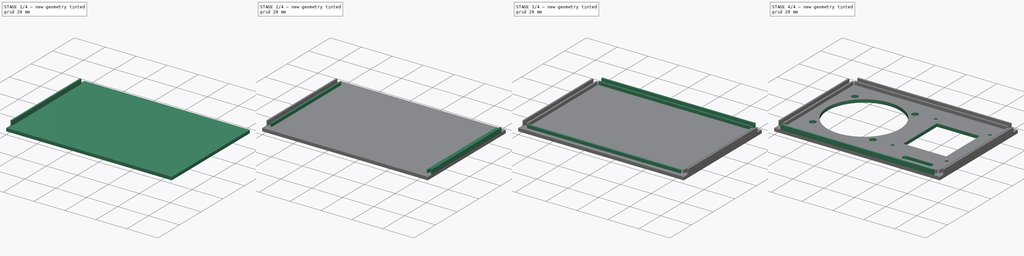
[diagram: build sequence overview — one tinted view per stage of 4, left to right]
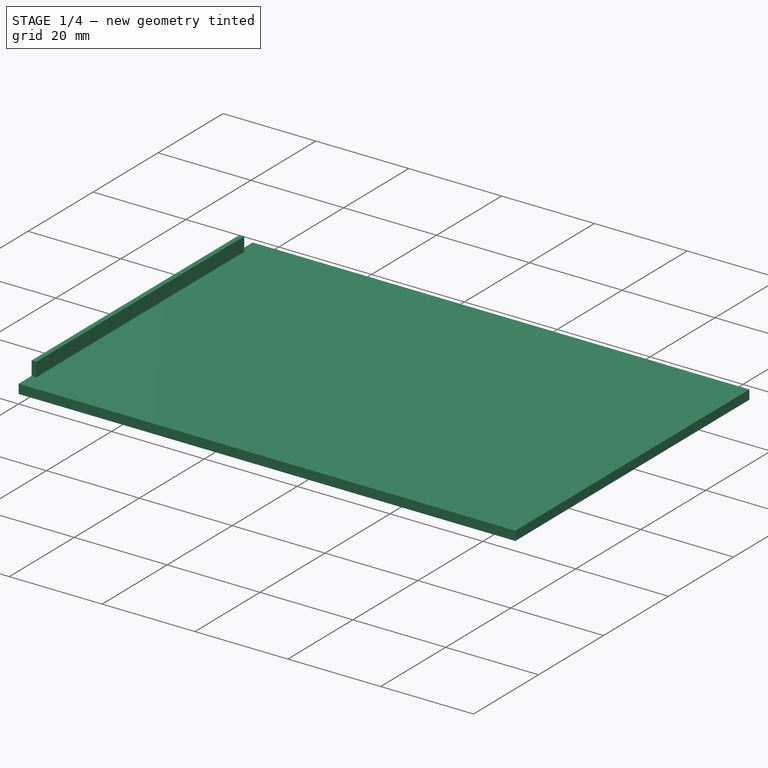
[diagram: stage 1 of 4 — iso view after this stage's code; geometry added in this stage tinted green]
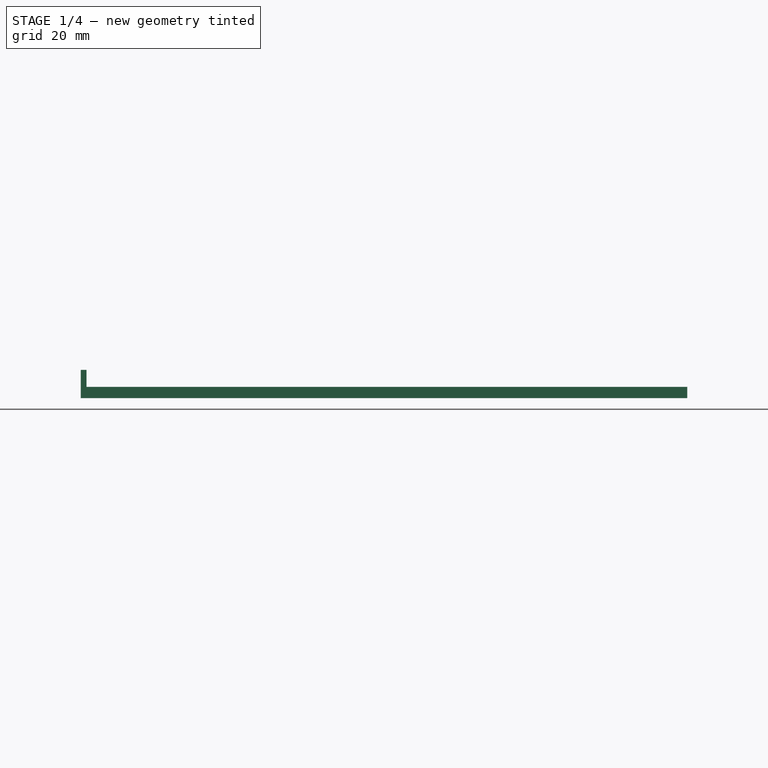
[diagram: stage 1 of 4 — front view after this stage's code; geometry added in this stage tinted green]
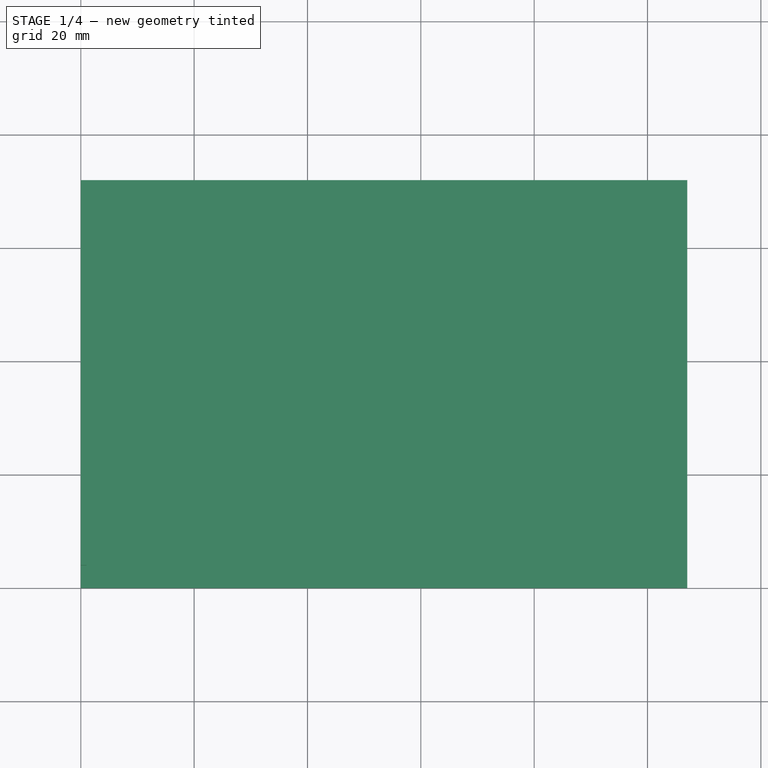
[diagram: stage 1 of 4 — top view after this stage's code; geometry added in this stage tinted green]
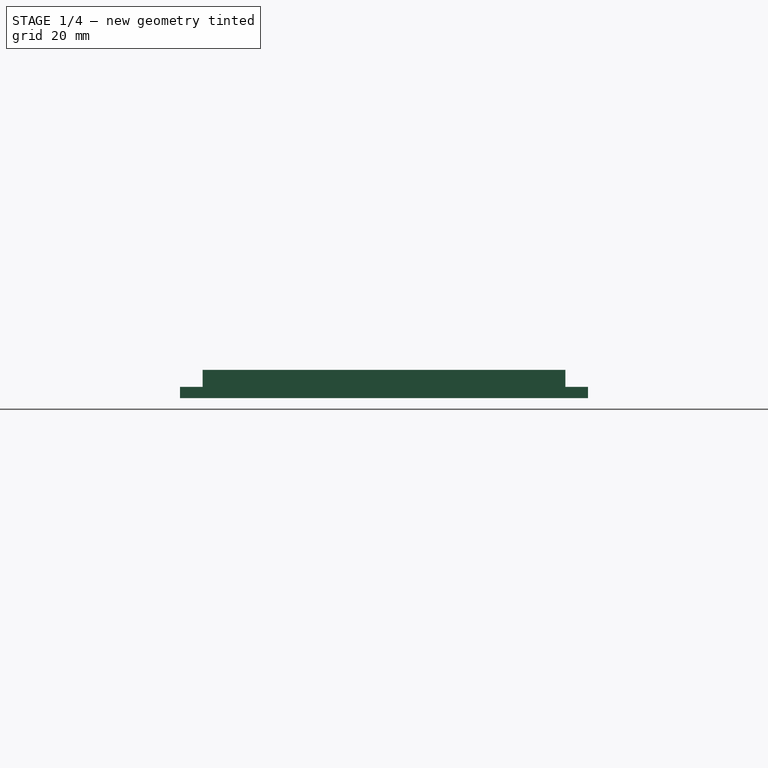
[diagram: stage 1 of 4 — right view after this stage's code; geometry added in this stage tinted green]
FCSTD DOCUMENT  (FreeCAD 0.17R13541 (Git))
Label: SBCBox_back
License: All rights reserved
LicenseURL: http://en.wikipedia.org/wiki/All_rights_reserved
objects: Sketcher::SketchObject×10, PartDesign::Pad×9, PartDesign::Pocket×1, PartDesign::Body×1
note: 31 computed .brp shape members not serialized (recipe doc carries the construction recipe); baked Part::Feature solids carry a one-line shape summary decoded from their .brp

FEATURE [Sketcher::SketchObject] Sketch
  MapMode = 5
  Support = -> [XY_Plane]
  sketch-geometry (4):
    g0: LineSegment StartX=0 StartY=0 StartZ=0 EndX=107 EndY=0 EndZ=0
    g1: LineSegment StartX=107 StartY=0 StartZ=0 EndX=107 EndY=72 EndZ=0
    g2: LineSegment StartX=107 StartY=72 StartZ=0 EndX=0 EndY=72 EndZ=0
    g3: LineSegment StartX=0 StartY=72 StartZ=0 EndX=0 EndY=0 EndZ=0
  constraints (12):
    c: Coincident(g0,g1)
    c: Coincident(g1,g2)
    c: Coincident(g2,g3)
    c: Coincident(g3,g0)
    c: Horizontal(g0)
    c: Horizontal(g2)
    c: Vertical(g1)
    c: Vertical(g3)
    c: DistanceX(g0) = 0
    c: DistanceY(g0) = 0
    c: Distance(g3) = 72
    c: Distance(g0) = 107
FEATURE [PartDesign::Pad] Pad
  Length = 2
  Length2 = 100
  Profile = -> Sketch
  Reversed = true
  Type = 0
FEATURE [Sketcher::SketchObject] Sketch001
  MapMode = 5
  Support = -> [XY_Plane]
  sketch-geometry (4):
    g0: LineSegment StartX=0 StartY=68 StartZ=0 EndX=1 EndY=68 EndZ=0
    g1: LineSegment StartX=1 StartY=68 StartZ=0 EndX=1 EndY=4 EndZ=0
    g2: LineSegment StartX=1 StartY=4 StartZ=0 EndX=0 EndY=4 EndZ=0
    g3: LineSegment StartX=0 StartY=4 StartZ=0 EndX=0 EndY=68 EndZ=0
  constraints (14):
    c: Coincident(g0,g1)
    c: Coincident(g1,g2)
    c: Coincident(g2,g3)
    c: Coincident(g3,g0)
    c: Horizontal(g0)
    c: Horizontal(g2)
    c: Vertical(g1)
    c: Vertical(g3)
    c: Distance(g0) = 1
    c: Equal(g0,g2)
    c: Equal(g1,g3)
    c: Distance(g3) = 64
    c: DistanceX(g2) = 0
    c: DistanceY(g2) = 4
FEATURE [PartDesign::Pad] Pad001
  BaseFeature = -> Pad
  Length = 3
  Length2 = 100
  Profile = -> Sketch001
  Type = 0
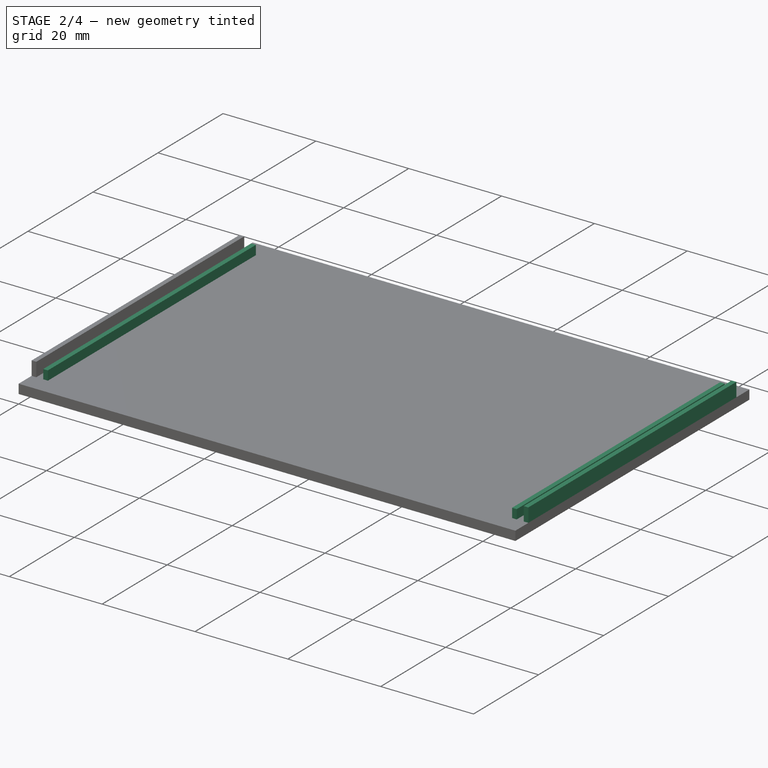
[diagram: stage 2 of 4 — iso view after this stage's code; geometry added in this stage tinted green]
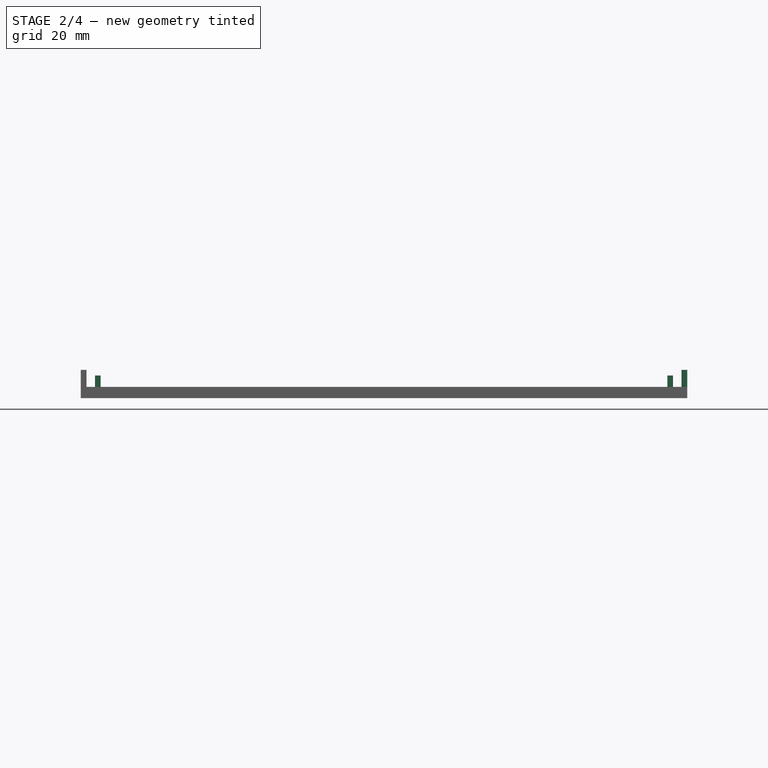
[diagram: stage 2 of 4 — front view after this stage's code; geometry added in this stage tinted green]
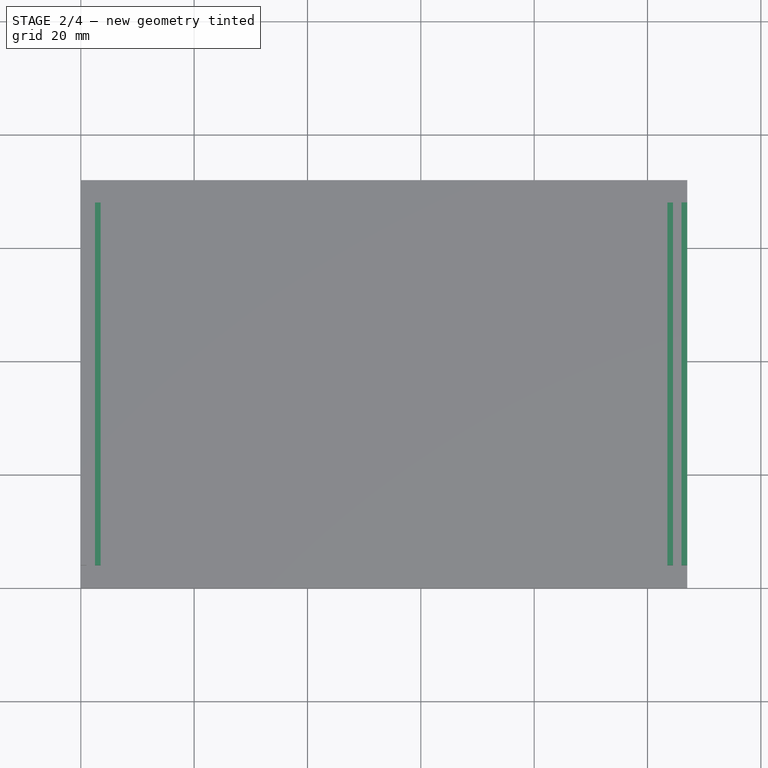
[diagram: stage 2 of 4 — top view after this stage's code; geometry added in this stage tinted green]
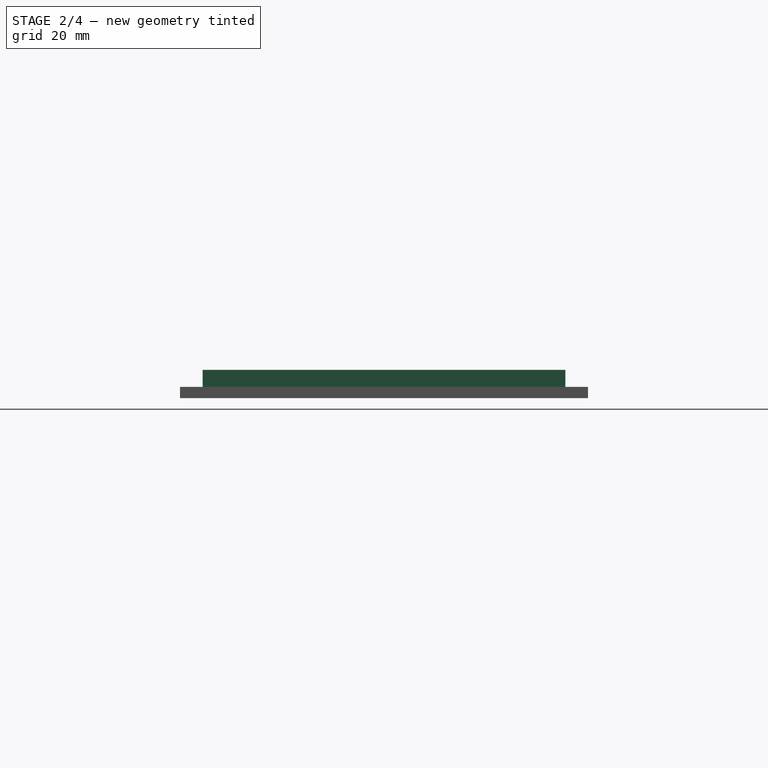
[diagram: stage 2 of 4 — right view after this stage's code; geometry added in this stage tinted green]
FEATURE [Sketcher::SketchObject] Sketch002
  MapMode = 5
  Support = -> [XY_Plane]
  sketch-geometry (4):
    g0: LineSegment StartX=2.5 StartY=68 StartZ=0 EndX=3.5 EndY=68 EndZ=0
    g1: LineSegment StartX=3.5 StartY=68 StartZ=0 EndX=3.5 EndY=4 EndZ=0
    g2: LineSegment StartX=3.5 StartY=4 StartZ=0 EndX=2.5 EndY=4 EndZ=0
    g3: LineSegment StartX=2.5 StartY=4 StartZ=0 EndX=2.5 EndY=68 EndZ=0
  constraints (14):
    c: Coincident(g0,g1)
    c: Coincident(g1,g2)
    c: Coincident(g2,g3)
    c: Coincident(g3,g0)
    c: Horizontal(g0)
    c: Horizontal(g2)
    c: Vertical(g1)
    c: Vertical(g3)
    c: Distance(g0) = 1
    c: Equal(g0,g2)
    c: Equal(g1,g3)
    c: Distance(g3) = 64
    c: DistanceX(g2) = 2.5
    c: DistanceY(g2) = 4
FEATURE [PartDesign::Pad] Pad002
  BaseFeature = -> Pad001
  Length = 2
  Length2 = 100
  Profile = -> Sketch002
  Type = 0
FEATURE [Sketcher::SketchObject] Sketch003
  MapMode = 5
  Support = -> [XY_Plane]
  sketch-geometry (4):
    g0: LineSegment StartX=104.5 StartY=68 StartZ=0 EndX=103.5 EndY=68 EndZ=0
    g1: LineSegment StartX=103.5 StartY=68 StartZ=0 EndX=103.5 EndY=4 EndZ=0
    g2: LineSegment StartX=103.5 StartY=4 StartZ=0 EndX=104.5 EndY=4 EndZ=0
    g3: LineSegment StartX=104.5 StartY=4 StartZ=0 EndX=104.5 EndY=68 EndZ=0
  constraints (14):
    c: Coincident(g0,g1)
    c: Coincident(g1,g2)
    c: Coincident(g2,g3)
    c: Coincident(g3,g0)
    c: Horizontal(g0)
    c: Horizontal(g2)
    c: Vertical(g1)
    c: Vertical(g3)
    c: Distance(g0) = 1
    c: Equal(g0,g2)
    c: Equal(g1,g3)
    c: Distance(g3) = 64
    c: DistanceX(g2) = 104.5
    c: DistanceY(g2) = 4
FEATURE [PartDesign::Pad] Pad003
  BaseFeature = -> Pad002
  Length = 2
  Length2 = 100
  Profile = -> Sketch003
  Type = 0
FEATURE [Sketcher::SketchObject] Sketch004
  MapMode = 5
  Support = -> [XY_Plane]
  sketch-geometry (4):
    g0: LineSegment StartX=107 StartY=68 StartZ=0 EndX=106 EndY=68 EndZ=0
    g1: LineSegment StartX=106 StartY=68 StartZ=0 EndX=106 EndY=4 EndZ=0
    g2: LineSegment StartX=106 StartY=4 StartZ=0 EndX=107 EndY=4 EndZ=0
    g3: LineSegment StartX=107 StartY=4 StartZ=0 EndX=107 EndY=68 EndZ=0
  constraints (14):
    c: Coincident(g0,g1)
    c: Coincident(g1,g2)
    c: Coincident(g2,g3)
    c: Coincident(g3,g0)
    c: Horizontal(g0)
    c: Horizontal(g2)
    c: Vertical(g1)
    c: Vertical(g3)
    c: Distance(g0) = 1
    c: Equal(g0,g2)
    c: Equal(g1,g3)
    c: Distance(g3) = 64
    c: DistanceX(g2) = 107
    c: DistanceY(g2) = 4
FEATURE [PartDesign::Pad] Pad004
  BaseFeature = -> Pad003
  Length = 3
  Length2 = 100
  Profile = -> Sketch004
  Type = 0
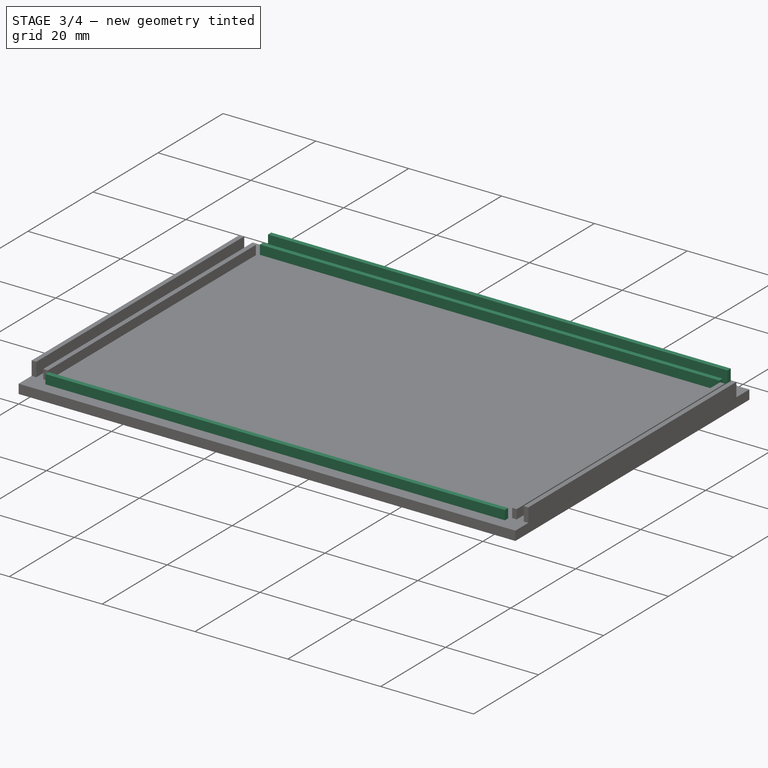
[diagram: stage 3 of 4 — iso view after this stage's code; geometry added in this stage tinted green]
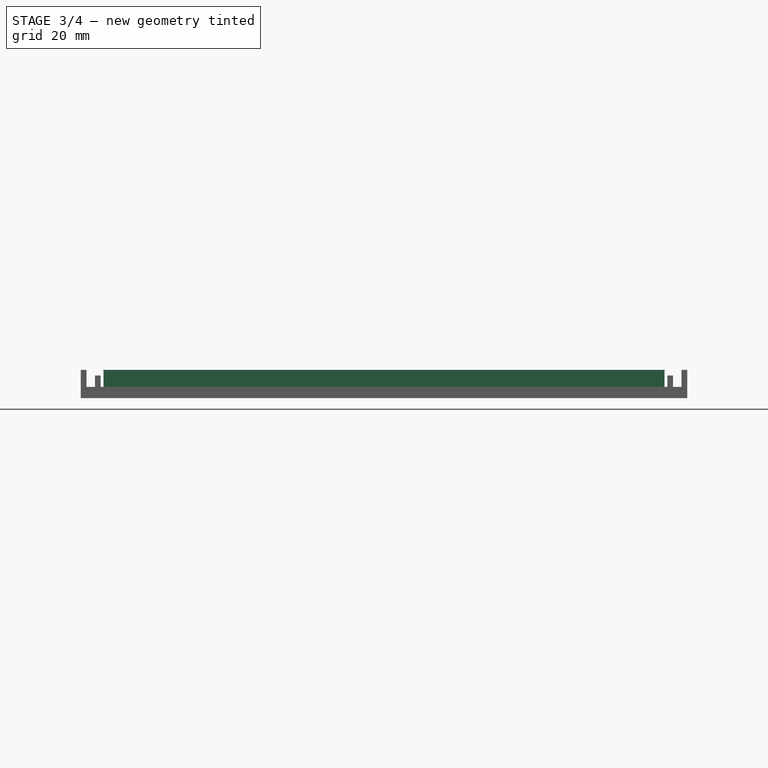
[diagram: stage 3 of 4 — front view after this stage's code; geometry added in this stage tinted green]
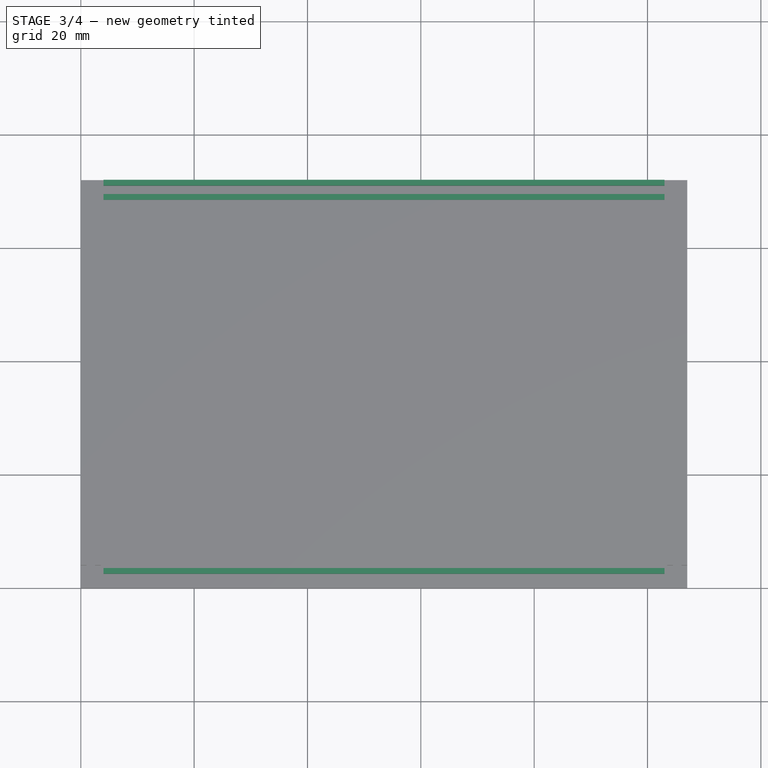
[diagram: stage 3 of 4 — top view after this stage's code; geometry added in this stage tinted green]
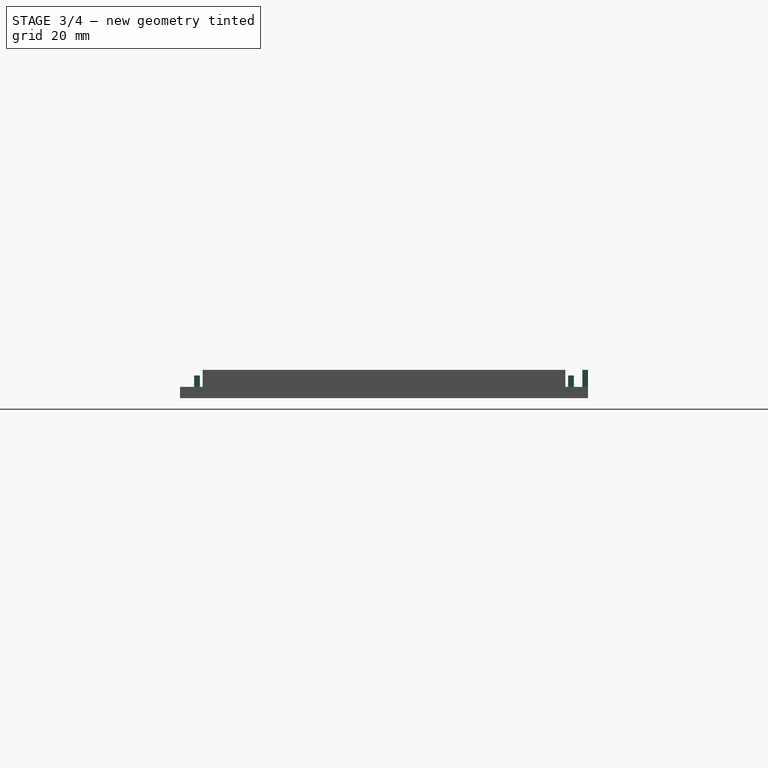
[diagram: stage 3 of 4 — right view after this stage's code; geometry added in this stage tinted green]
FEATURE [Sketcher::SketchObject] Sketch005
  MapMode = 5
  Support = -> [XY_Plane]
  sketch-geometry (4):
    g0: LineSegment StartX=4 StartY=72 StartZ=0 EndX=103 EndY=72 EndZ=0
    g1: LineSegment StartX=103 StartY=72 StartZ=0 EndX=103 EndY=71 EndZ=0
    g2: LineSegment StartX=103 StartY=71 StartZ=0 EndX=4 EndY=71 EndZ=0
    g3: LineSegment StartX=4 StartY=71 StartZ=0 EndX=4 EndY=72 EndZ=0
  constraints (14):
    c: Coincident(g0,g1)
    c: Coincident(g1,g2)
    c: Coincident(g2,g3)
    c: Coincident(g3,g0)
    c: Horizontal(g0)
    c: Horizontal(g2)
    c: Vertical(g1)
    c: Vertical(g3)
    c: Equal(g0,g2)
    c: Equal(g1,g3)
    c: Distance(g0) = 99
    c: Distance(g3) = 1
    c: DistanceX(g0) = 4
    c: DistanceY(g0) = 72
FEATURE [PartDesign::Pad] Pad005
  BaseFeature = -> Pad004
  Length = 3
  Length2 = 100
  Profile = -> Sketch005
  Type = 0
FEATURE [Sketcher::SketchObject] Sketch006
  MapMode = 5
  Support = -> [XY_Plane]
  sketch-geometry (4):
    g0: LineSegment StartX=4 StartY=69.5 StartZ=0 EndX=103 EndY=69.5 EndZ=0
    g1: LineSegment StartX=103 StartY=69.5 StartZ=0 EndX=103 EndY=68.5 EndZ=0
    g2: LineSegment StartX=103 StartY=68.5 StartZ=0 EndX=4 EndY=68.5 EndZ=0
    g3: LineSegment StartX=4 StartY=68.5 StartZ=0 EndX=4 EndY=69.5 EndZ=0
  constraints (14):
    c: Coincident(g0,g1)
    c: Coincident(g1,g2)
    c: Coincident(g2,g3)
    c: Coincident(g3,g0)
    c: Horizontal(g0)
    c: Horizontal(g2)
    c: Vertical(g1)
    c: Vertical(g3)
    c: Equal(g0,g2)
    c: Equal(g1,g3)
    c: Distance(g0) = 99
    c: Distance(g3) = 1
    c: DistanceX(g0) = 4
    c: DistanceY(g0) = 69.5
FEATURE [PartDesign::Pad] Pad006
  BaseFeature = -> Pad005
  Length = 2
  Length2 = 100
  Profile = -> Sketch006
  Type = 0
FEATURE [Sketcher::SketchObject] Sketch007
  MapMode = 5
  Support = -> [XY_Plane]
  sketch-geometry (4):
    g0: LineSegment StartX=4 StartY=2.5 StartZ=0 EndX=103 EndY=2.5 EndZ=0
    g1: LineSegment StartX=103 StartY=2.5 StartZ=0 EndX=103 EndY=3.5 EndZ=0
    g2: LineSegment StartX=103 StartY=3.5 StartZ=0 EndX=4 EndY=3.5 EndZ=0
    g3: LineSegment StartX=4 StartY=3.5 StartZ=0 EndX=4 EndY=2.5 EndZ=0
  constraints (14):
    c: Coincident(g0,g1)
    c: Coincident(g1,g2)
    c: Coincident(g2,g3)
    c: Coincident(g3,g0)
    c: Horizontal(g0)
    c: Horizontal(g2)
    c: Vertical(g1)
    c: Vertical(g3)
    c: Equal(g0,g2)
    c: Equal(g1,g3)
    c: Distance(g0) = 99
    c: Distance(g3) = 1
    c: DistanceX(g0) = 4
    c: DistanceY(g0) = 2.5
FEATURE [PartDesign::Pad] Pad007
  BaseFeature = -> Pad006
  Length = 2
  Length2 = 100
  Profile = -> Sketch007
  Type = 0
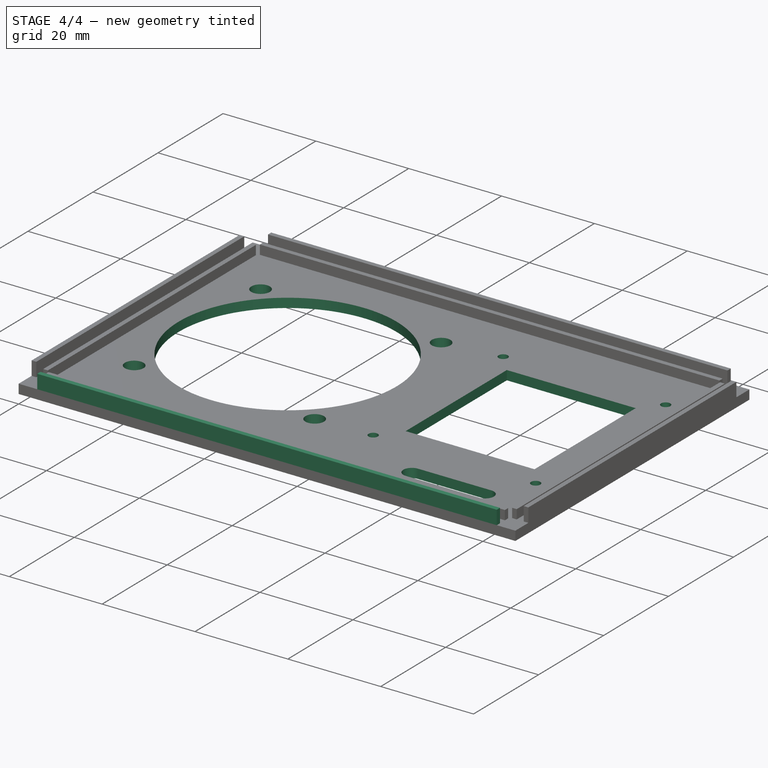
[diagram: stage 4 of 4 — iso view after this stage's code; geometry added in this stage tinted green]
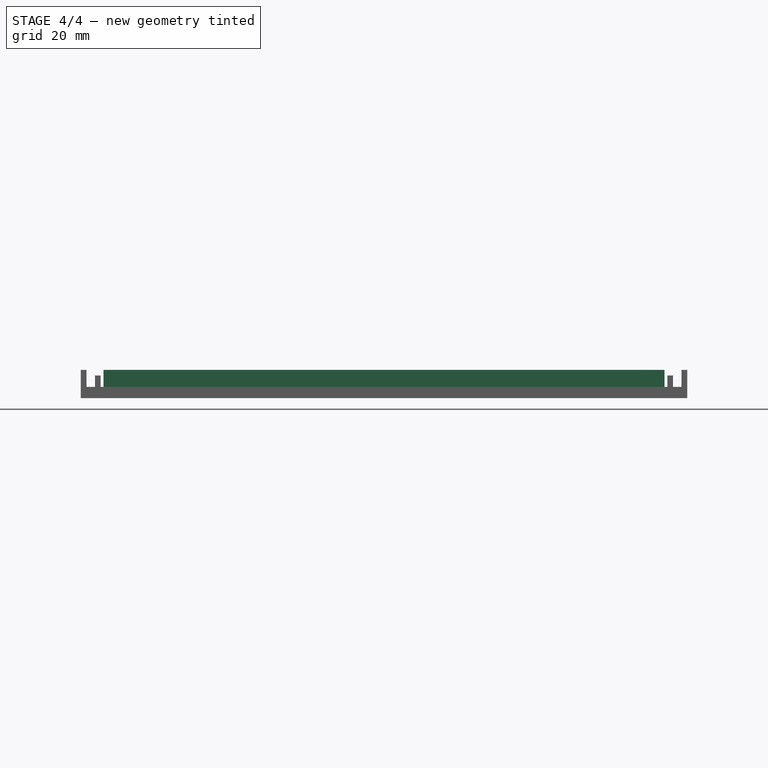
[diagram: stage 4 of 4 — front view after this stage's code; geometry added in this stage tinted green]
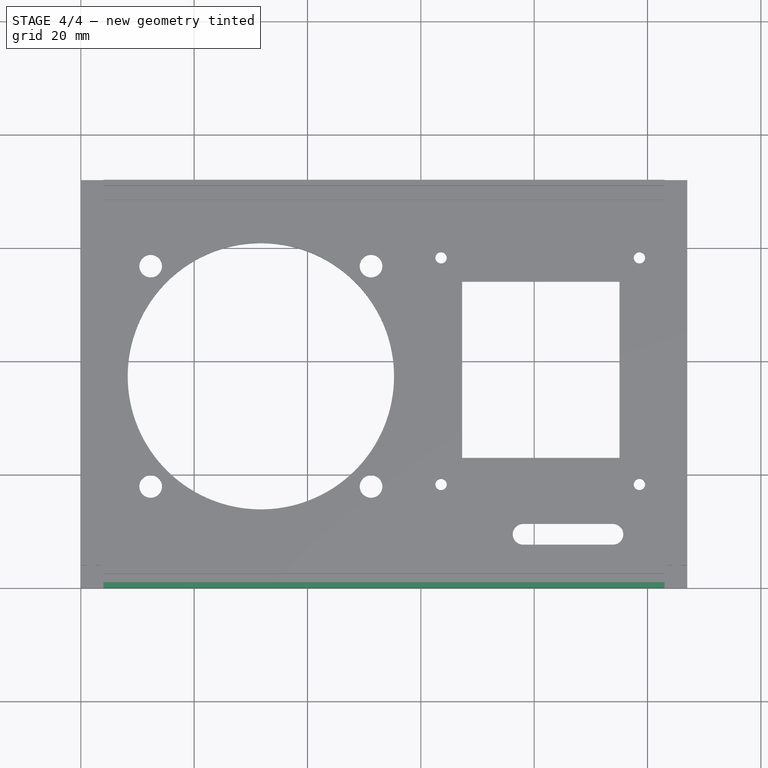
[diagram: stage 4 of 4 — top view after this stage's code; geometry added in this stage tinted green]
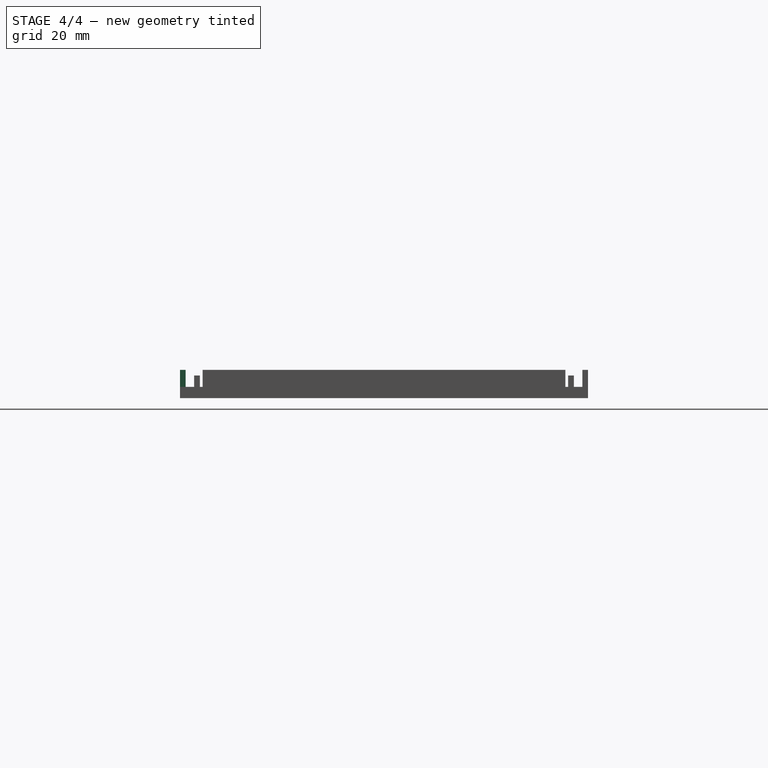
[diagram: stage 4 of 4 — right view after this stage's code; geometry added in this stage tinted green]
FEATURE [Sketcher::SketchObject] Sketch008
  MapMode = 5
  Support = -> [XY_Plane]
  sketch-geometry (4):
    g0: LineSegment StartX=4 StartY=0 StartZ=0 EndX=103 EndY=0 EndZ=0
    g1: LineSegment StartX=103 StartY=0 StartZ=0 EndX=103 EndY=1 EndZ=0
    g2: LineSegment StartX=103 StartY=1 StartZ=0 EndX=4 EndY=1 EndZ=0
    g3: LineSegment StartX=4 StartY=1 StartZ=0 EndX=4 EndY=0 EndZ=0
  constraints (14):
    c: Coincident(g0,g1)
    c: Coincident(g1,g2)
    c: Coincident(g2,g3)
    c: Coincident(g3,g0)
    c: Horizontal(g0)
    c: Horizontal(g2)
    c: Vertical(g1)
    c: Vertical(g3)
    c: Equal(g0,g2)
    c: Equal(g1,g3)
    c: Distance(g0) = 99
    c: Distance(g3) = 1
    c: DistanceX(g0) = 4
    c: DistanceY(g0) = 0
FEATURE [PartDesign::Pad] Pad008
  BaseFeature = -> Pad007
  Length = 3
  Length2 = 100
  Profile = -> Sketch008
  Type = 0
FEATURE [Sketcher::SketchObject] Sketch009
  ExternalGeometry = -> [Pad]
  MapMode = 5
  Support = -> [XY_Plane]
  sketch-geometry (30):
    g0: LineSegment [constr] StartX=61.1994 StartY=72 StartZ=0 EndX=0 EndY=0 EndZ=0
    g1: LineSegment [constr] StartX=-0.0227023 StartY=71.9474 StartZ=0 EndX=63.7619 EndY=2.6067 EndZ=0
    g2: Circle CenterX=31.7738 CenterY=37.3812 CenterZ=0 NormalX=0 NormalY=0 NormalZ=1 AngleXU=0 Radius=23.5
    g3: LineSegment [constr] StartX=8.27375 StartY=60.8812 StartZ=0 EndX=8.27375 EndY=13.8812 EndZ=0
    g4: LineSegment [constr] StartX=8.27375 StartY=60.8812 StartZ=0 EndX=55.2738 EndY=60.8812 EndZ=0
    g5: LineSegment [constr] StartX=55.2738 StartY=60.8812 StartZ=0 EndX=55.2738 EndY=13.8812 EndZ=0
    g6: LineSegment [constr] StartX=55.2738 StartY=13.8812 StartZ=0 EndX=8.27375 EndY=13.8812 EndZ=0
    g7: LineSegment [constr] StartX=8.27375 StartY=60.8812 StartZ=0 EndX=55.2738 EndY=13.8812 EndZ=0
    g8: LineSegment [constr] StartX=8.27375 StartY=13.8812 StartZ=0 EndX=55.2738 EndY=60.8812 EndZ=0
    g9: Circle [constr] CenterX=31.7738 CenterY=37.3812 CenterZ=0 NormalX=0 NormalY=0 NormalZ=1 AngleXU=0 Radius=27.5
    g10: Circle CenterX=12.3283 CenterY=56.8267 CenterZ=0 NormalX=0 NormalY=0 NormalZ=1 AngleXU=0 Radius=2
    g11: Circle CenterX=51.2192 CenterY=56.8267 CenterZ=0 NormalX=0 NormalY=0 NormalZ=1 AngleXU=0 Radius=2
    g12: Circle CenterX=51.2192 CenterY=17.9358 CenterZ=0 NormalX=0 NormalY=0 NormalZ=1 AngleXU=0 Radius=2
    g13: Circle CenterX=12.3283 CenterY=17.9358 CenterZ=0 NormalX=0 NormalY=0 NormalZ=1 AngleXU=0 Radius=2
    g14: ArcOfCircle CenterX=78.0613 CenterY=9.50406 CenterZ=0 NormalX=0 NormalY=0 NormalZ=1 AngleXU=0 Radius=1.85051 StartAngle=1.5708 EndAngle=4.71239
    g15: ArcOfCircle CenterX=93.8748 CenterY=9.50406 CenterZ=0 NormalX=0 NormalY=0 NormalZ=1 AngleXU=0 Radius=1.85051 StartAngle=4.71239 EndAngle=7.85398
    g16: LineSegment StartX=78.0613 StartY=7.65355 StartZ=0 EndX=93.8748 EndY=7.65355 EndZ=0
    g17: LineSegment StartX=78.0613 StartY=11.3546 StartZ=0 EndX=93.8748 EndY=11.3546 EndZ=0
    g18: LineSegment [constr] StartX=63.5723 StartY=58.2906 StartZ=0 EndX=98.5723 EndY=58.2906 EndZ=0
    g19: LineSegment [constr] StartX=98.5723 StartY=58.2906 StartZ=0 EndX=98.5723 EndY=18.2906 EndZ=0
    g20: LineSegment [constr] StartX=98.5723 StartY=18.2906 StartZ=0 EndX=63.5723 EndY=18.2906 EndZ=0
    g21: LineSegment [constr] StartX=63.5723 StartY=18.2906 StartZ=0 EndX=63.5723 EndY=58.2906 EndZ=0
    g22: Circle CenterX=63.5723 CenterY=58.2906 CenterZ=0 NormalX=0 NormalY=0 NormalZ=1 AngleXU=0 Radius=1
    g23: Circle CenterX=98.5723 CenterY=58.2906 CenterZ=0 NormalX=0 NormalY=0 NormalZ=1 AngleXU=0 Radius=1
    g24: Circle CenterX=63.5723 CenterY=18.2906 CenterZ=0 NormalX=0 NormalY=0 NormalZ=1 AngleXU=0 Radius=1
    g25: Circle CenterX=98.5723 CenterY=18.2906 CenterZ=0 NormalX=0 NormalY=0 NormalZ=1 AngleXU=0 Radius=1
    g26: LineSegment StartX=67.2947 StartY=54.0845 StartZ=0 EndX=95.0524 EndY=54.0845 EndZ=0
    g27: LineSegment StartX=95.0524 StartY=54.0845 StartZ=0 EndX=95.0524 EndY=22.9623 EndZ=0
    g28: LineSegment StartX=95.0524 StartY=22.9623 StartZ=0 EndX=67.2947 EndY=22.9623 EndZ=0
    g29: LineSegment StartX=67.2947 StartY=22.9623 StartZ=0 EndX=67.2947 EndY=54.0845 EndZ=0
  constraints (67):
    c: PointOnObject(g0,g-3)
    c: Coincident(g0,g-1)
    c: Radius(g2) = 23.5
    c: PointOnObject(g2,g1)
    c: PointOnObject(g2,g0)
    c: Vertical(g3)
    c: Tangent(g2,g3)
    c: Coincident(g4,g3)
    c: Horizontal(g4)
    c: Tangent(g4,g2)
    c: Coincident(g5,g4)
    c: Vertical(g5)
    c: Tangent(g5,g2)
    c: Coincident(g6,g5)
    c: Coincident(g6,g3)
    c: Horizontal(g6)
    c: Tangent(g6,g2)
    c: Coincident(g7,g3)
    c: Coincident(g7,g5)
    c: Coincident(g8,g3)
    c: Coincident(g8,g4)
    c: Coincident(g9,g2)
    c: Radius(g9) = 27.5
    c: PointOnObject(g10,g7)
    c: PointOnObject(g10,g9)
    c: PointOnObject(g11,g8)
    c: PointOnObject(g11,g9)
    c: PointOnObject(g12,g7)
    c: PointOnObject(g12,g9)
    c: PointOnObject(g13,g9)
    c: PointOnObject(g13,g8)
    c: Radius(g10) = 2
    c: Radius(g11) = 2
    c: Radius(g12) = 2
    c: Radius(g13) = 2
    c: Tangent(g14,g17) = 1.5708
    c: Tangent(g14,g16) = -1.5708
    c: Tangent(g16,g15) = -1.5708
    c: Tangent(g17,g15) = 1.5708
    c: Horizontal(g16)
    c: Equal(g14,g15)
    c: Coincident(g18,g19)
    c: Coincident(g19,g20)
    c: Coincident(g20,g21)
    c: Coincident(g21,g18)
    c: Horizontal(g18)
    c: Horizontal(g20)
    c: Vertical(g19)
    c: Vertical(g21)
    c: Distance(g21) = 40
    c: Distance(g20) = 35
    c: Coincident(g22,g18)
    c: Coincident(g23,g18)
    c: Coincident(g24,g20)
    c: Coincident(g25,g19)
    c: Radius(g22) = 1
    c: Equal(g22,g23)
    c: Equal(g22,g24)
    c: Equal(g22,g25)
    c: Coincident(g26,g27)
    c: Coincident(g27,g28)
    c: Coincident(g28,g29)
    c: Coincident(g29,g26)
    c: Horizontal(g26)
    c: Horizontal(g28)
    c: Vertical(g27)
    c: Vertical(g29)
FEATURE [PartDesign::Pocket] Pocket
  BaseFeature = -> Pad008
  Length = 5
  Length2 = 100
  Profile = -> Sketch009
  Type = 1
FEATURE [PartDesign::Body] Body
  Group = -> [Sketch,Pad,Sketch001,Pad001,Sketch002,Pad002,Sketch003,Pad003,Sketch004,Pad004,Sketch005,Pad005,Sketch006,Pad006,Sketch007,Pad007,Sketch008,Pad008,Sketch009,Pocket]
  Origin = -> Origin
  Tip = -> Pocket
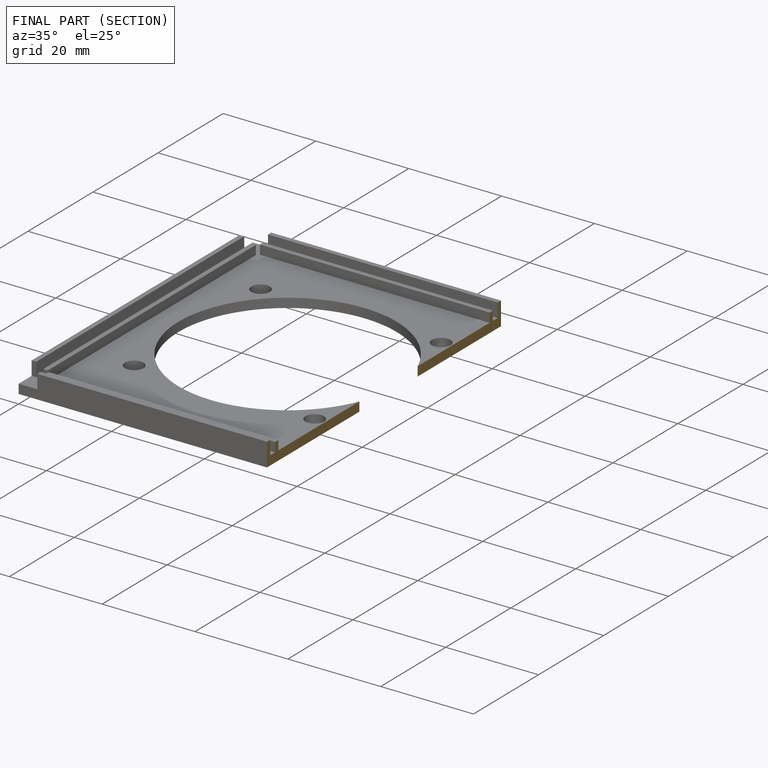
[diagram: finished part — half-section view (interior)]
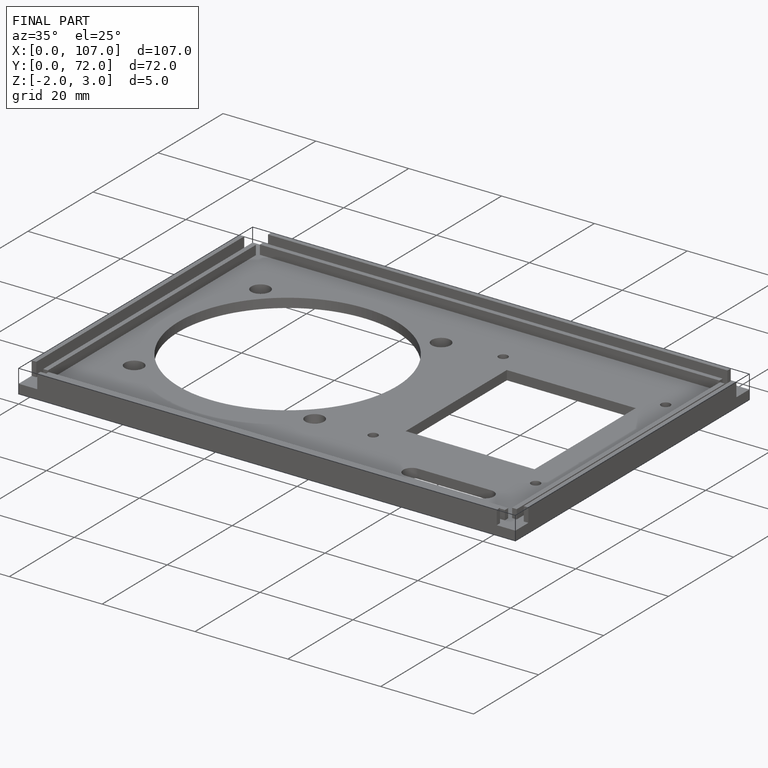
[diagram: finished part — iso view with bounding-box wireframe]
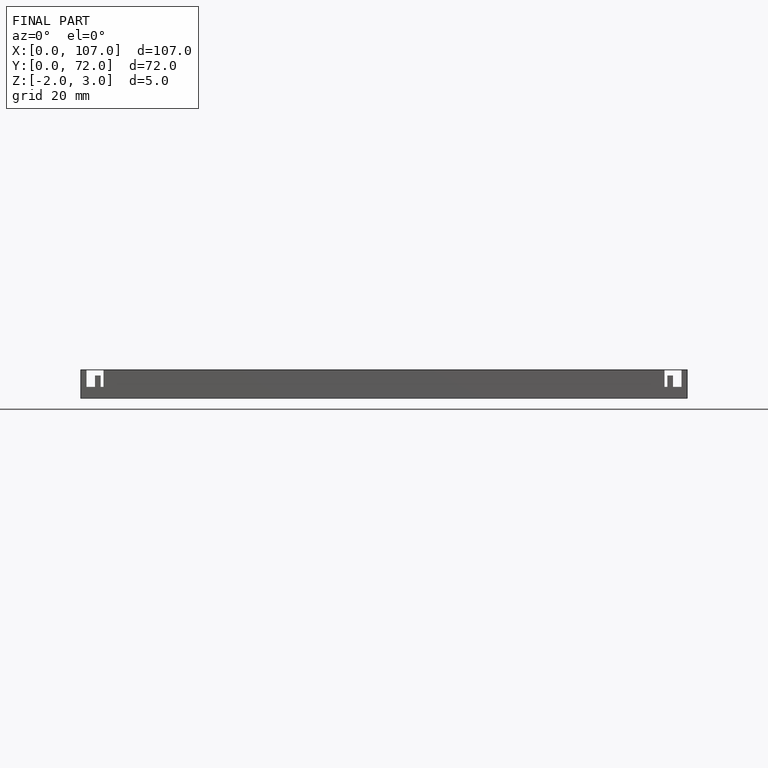
[diagram: finished part — front view with bounding-box wireframe]
